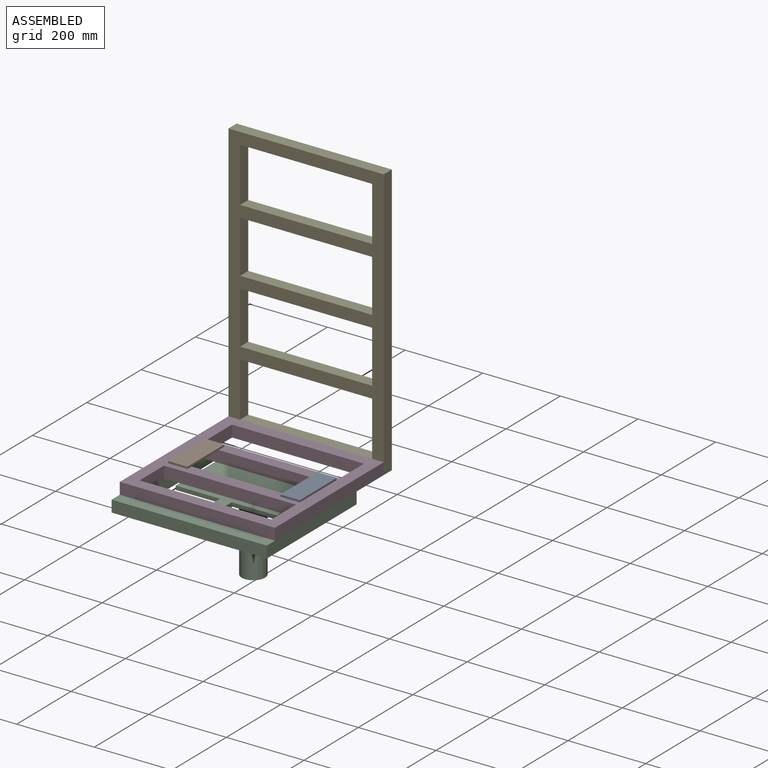
[diagram: assembled view]
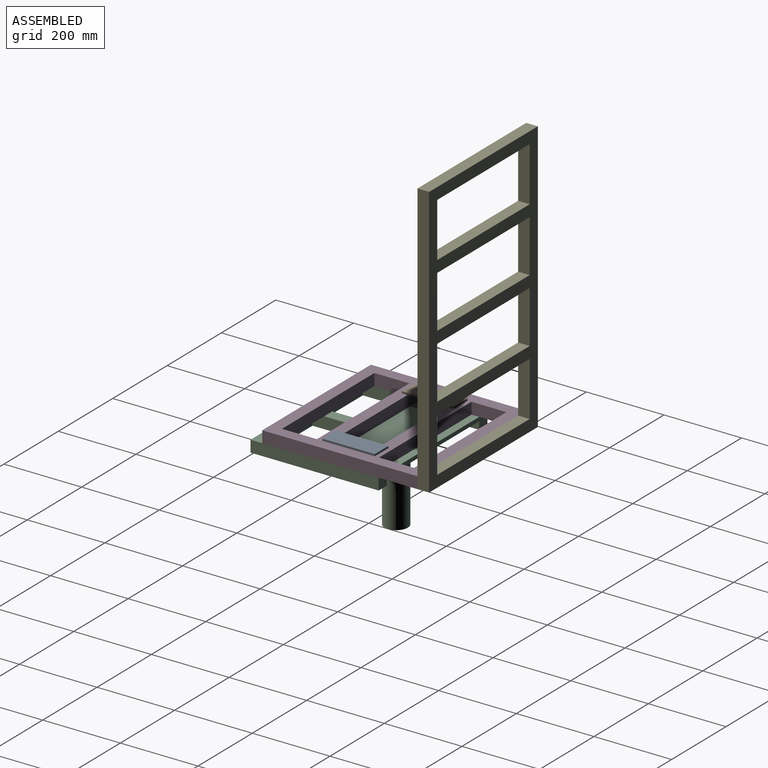
[diagram: assembled view, second angle]
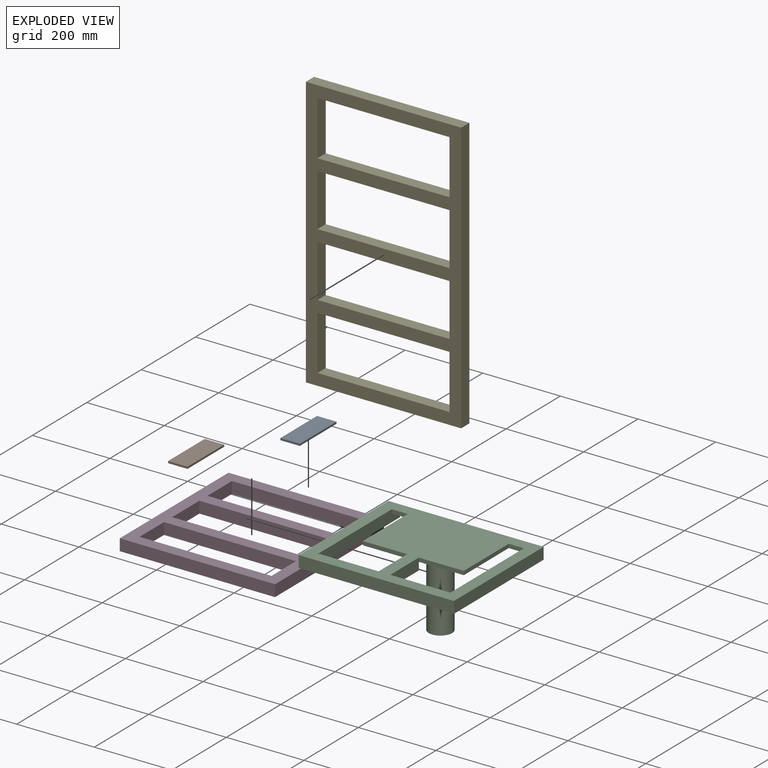
[diagram: exploded view]
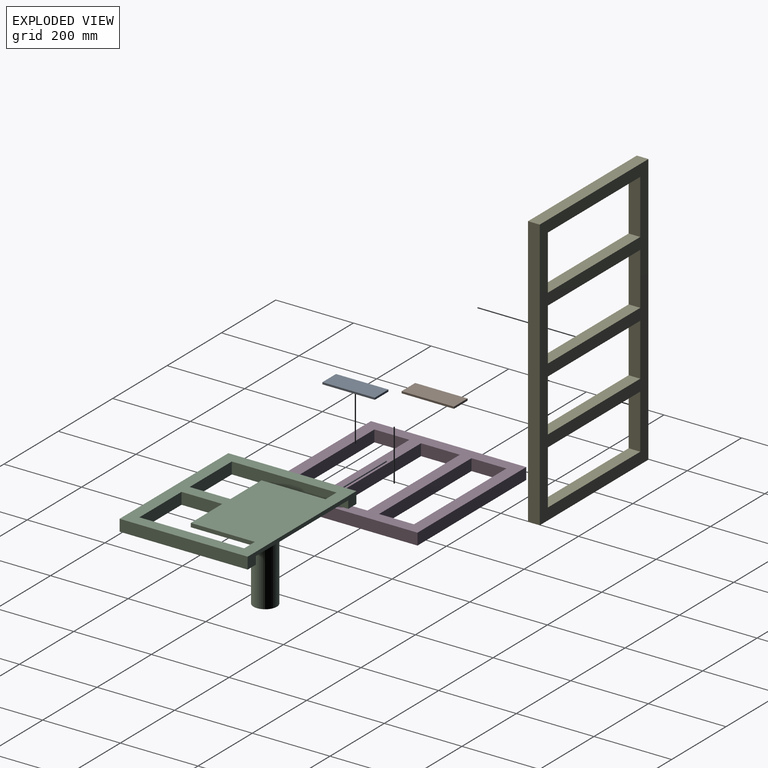
[diagram: exploded view, second angle]
ASSEMBLY  parts=5 mates=3
PART A: 6 faces, bbox 50x135x5 mm
  f0: plane 50x5mm, normal (0,-1,0), area 250mm2, adj f1,f3,f4,f5
  f1: plane 135x5mm, normal (-1,0,0), area 675mm2, adj f0,f2,f4,f5
  f2: plane 50x5mm, normal (0,1,0), area 250mm2, adj f1,f3,f4,f5
  f3: plane 135x5mm, normal (1,0,0), area 675mm2, adj f0,f2,f4,f5
  f4: plane 135x50mm, normal (0,0,-1), area 6750mm2, adj f0,f1,f2,f3
  f5: plane 135x50mm, normal (0,0,1), area 6750mm2, adj f0,f1,f2,f3
PART B: 6 faces, bbox 50x135x5 mm
  f0: plane 135x5mm, normal (1,0,0), area 675mm2, adj f1,f3,f4,f5
  f1: plane 50x5mm, normal (0,-1,0), area 250mm2, adj f0,f2,f4,f5
  f2: plane 135x5mm, normal (-1,0,0), area 675mm2, adj f1,f3,f4,f5
  f3: plane 50x5mm, normal (0,1,0), area 250mm2, adj f0,f2,f4,f5
  f4: plane 135x50mm, normal (0,0,-1), area 6750mm2, adj f0,f1,f2,f3
  f5: plane 135x50mm, normal (0,0,1), area 6750mm2, adj f0,f1,f2,f3
PART C: 22 faces, bbox 400x330x210 mm
  f0: plane 30x20mm, normal (0,1,0), area 600mm2, adj f4,f5,f12,f19
  f1: plane 300x30mm, normal (-1,0,0), area 8700mm2, adj f3,f7,f11,f12,f18,f19
  f2: plane 300x30mm, normal (1,0,0), area 8700mm2, adj f6,f7,f11,f12,f14,f19
  f3: plane 155x30mm, normal (0,1,0), area 4650mm2, adj f1,f4,f11,f12
  f4: plane 105x30mm, normal (1,0,0), area 3150mm2, adj f0,f3,f11,f12,f16
  f5: plane 105x30mm, normal (-1,0,0), area 3150mm2, adj f0,f6,f11,f12,f13
  f6: plane 155x30mm, normal (0,1,0), area 4650mm2, adj f2,f5,f11,f12
  f7: plane 400x30mm, normal (0,1,0), area 5200mm2, adj f1,f2,f8,f10,f11,f12,f19
  f8: plane 330x30mm, normal (-1,0,0), area 9900mm2, adj f7,f9,f11,f12
  f9: plane 400x30mm, normal (0,-1,0), area 12000mm2, adj f8,f10,f11,f12
  f10: plane 330x30mm, normal (1,0,0), area 9900mm2, adj f7,f9,f11,f12
  f11: plane 400x330mm, normal (0,0,1), area 86250mm2, adj f1,f2,f3,f4,f5,f6,f7,f8
  f12: plane 400x330mm, normal (0,0,-1), area 33150mm2, adj f0,f1,f2,f3,f4,f5,f6,f7
  f13: plane 114.17x10mm, normal (0,-1,0), area 1141.7mm2, adj f5,f11,f15,f19
  f14: plane 40.83x10mm, normal (0,-1,0), area 408.3mm2, adj f2,f11,f15,f19
  f15: plane 165x10mm, normal (-1,0,0), area 1650mm2, adj f11,f13,f14,f19
  f16: plane 115.83x10mm, normal (0,-1,0), area 1158.3mm2, adj f4,f11,f17,f19
  f17: plane 165x10mm, normal (1,0,0), area 1650mm2, adj f11,f16,f18,f19
  f18: plane 39.17x10mm, normal (0,-1,0), area 391.7mm2, adj f1,f11,f17,f19
  f19: plane 340x195mm, normal (0,0,-1), area 50272.6mm2, adj f0,f1,f2,f7,f13,f14,f15,f16
  f20: cylinder r=30mm len=200mm, axis (0,0,1), area 37699.1mm2, adj f19,f21
  f21: plane 60x60mm, normal (0,0,-1), area 2827.4mm2, adj f20
PART D: 18 faces, bbox 400x400x30 mm
  f0: plane 340x30mm, normal (0,-1,0), area 10200mm2, adj f1,f15,f16,f17
  f1: plane 90x30mm, normal (-1,0,0), area 2700mm2, adj f0,f2,f16,f17
  f2: plane 340x30mm, normal (0,1,0), area 10200mm2, adj f1,f15,f16,f17
  f3: plane 340x30mm, normal (0,-1,0), area 10200mm2, adj f4,f12,f16,f17
  f4: plane 100x30mm, normal (-1,0,0), area 3000mm2, adj f3,f5,f16,f17
  f5: plane 340x30mm, normal (0,1,0), area 10200mm2, adj f4,f12,f16,f17
  f6: plane 90x30mm, normal (1,0,0), area 2700mm2, adj f7,f13,f16,f17
  f7: plane 340x30mm, normal (0,-1,0), area 10200mm2, adj f6,f8,f16,f17
  f8: plane 90x30mm, normal (-1,0,0), area 2700mm2, adj f7,f13,f16,f17
  f9: plane 400x30mm, normal (0,1,0), area 12000mm2, adj f10,f14,f16,f17
  f10: plane 400x30mm, normal (-1,0,0), area 12000mm2, adj f9,f11,f16,f17
  f11: plane 400x30mm, normal (0,-1,0), area 12000mm2, adj f10,f14,f16,f17
  f12: plane 100x30mm, normal (1,0,0), area 3000mm2, adj f3,f5,f16,f17
  f13: plane 340x30mm, normal (0,1,0), area 10200mm2, adj f6,f8,f16,f17
  f14: plane 400x30mm, normal (1,0,0), area 12000mm2, adj f9,f11,f16,f17
  f15: plane 90x30mm, normal (1,0,0), area 2700mm2, adj f0,f2,f16,f17
  f16: plane 400x400mm, normal (0,0,1), area 64800mm2, adj f0,f1,f2,f3,f4,f5,f6,f7
  f17: plane 400x400mm, normal (0,0,-1), area 64800mm2, adj f0,f1,f2,f3,f4,f5,f6,f7
PART E: 22 faces, bbox 400x700x30 mm
  f0: plane 340x30mm, normal (0,-1,0), area 10200mm2, adj f1,f19,f20,f21
  f1: plane 140x30mm, normal (-1,0,0), area 4200mm2, adj f0,f2,f20,f21
  f2: plane 340x30mm, normal (0,1,0), area 10200mm2, adj f1,f19,f20,f21
  f3: plane 135x30mm, normal (1,0,0), area 4050mm2, adj f4,f15,f20,f21
  f4: plane 340x30mm, normal (0,-1,0), area 10200mm2, adj f3,f5,f20,f21
  f5: plane 135x30mm, normal (-1,0,0), area 4050mm2, adj f4,f15,f20,f21
  f6: plane 340x30mm, normal (0,1,0), area 10200mm2, adj f7,f16,f20,f21
  f7: plane 135x30mm, normal (1,0,0), area 4050mm2, adj f6,f8,f20,f21
  f8: plane 340x30mm, normal (0,-1,0), area 10200mm2, adj f7,f16,f20,f21
  f9: plane 140x30mm, normal (1,0,0), area 4200mm2, adj f10,f17,f20,f21
  f10: plane 340x30mm, normal (0,-1,0), area 10200mm2, adj f9,f11,f20,f21
  f11: plane 140x30mm, normal (-1,0,0), area 4200mm2, adj f10,f17,f20,f21
  f12: plane 400x30mm, normal (0,1,0), area 12000mm2, adj f13,f18,f20,f21
  f13: plane 700x30mm, normal (-1,0,0), area 21000mm2, adj f12,f14,f20,f21
  f14: plane 400x30mm, normal (0,-1,0), area 12000mm2, adj f13,f18,f20,f21
  f15: plane 340x30mm, normal (0,1,0), area 10200mm2, adj f3,f5,f20,f21
  f16: plane 135x30mm, normal (-1,0,0), area 4050mm2, adj f6,f8,f20,f21
  f17: plane 340x30mm, normal (0,1,0), area 10200mm2, adj f9,f11,f20,f21
  f18: plane 700x30mm, normal (1,0,0), area 21000mm2, adj f12,f14,f20,f21
  f19: plane 140x30mm, normal (1,0,0), area 4200mm2, adj f0,f2,f20,f21
  f20: plane 700x400mm, normal (0,0,1), area 93000mm2, adj f0,f1,f2,f3,f4,f5,f6,f7
  f21: plane 700x400mm, normal (0,0,-1), area 93000mm2, adj f0,f1,f2,f3,f4,f5,f6,f7
PLACE A rot(axis=(1,0,0),180deg) t=(-134.57,271.25,45.56)mm
PLACE B rot(axis=(1,0,0),180deg) t=(-134.57,272.25,45.56)mm
PLACE C t=(-129.47,-103.33,-14.44)mm
PLACE D t=(-134.57,-71.85,15.56)mm
PLACE E rot(axis=(1,0,0),90deg) t=(-134.57,295.2,78.51)mm
MATE planar A.f5 <-> D.f16  axis (0,0,-1) through (169.7,-0.8,45.56)mm
MATE planar E.f20 <-> D.f9  axis (0,-1,0) through (-0.3,265.2,15.56)mm
MATE planar B.f5 <-> D.f16  axis (0,0,-1) through (-170.3,135.2,45.56)mm
